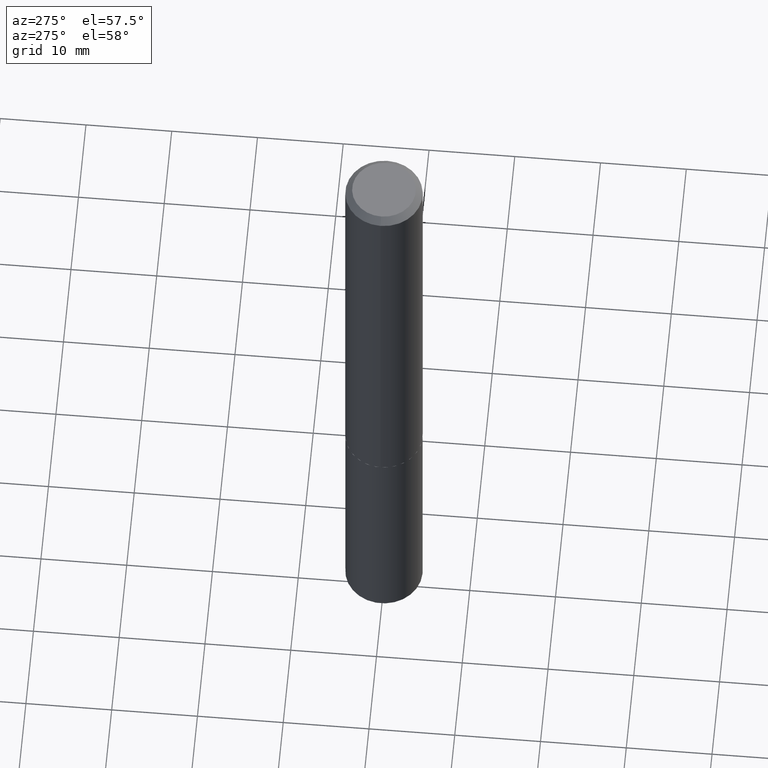
[diagram: clean part render]
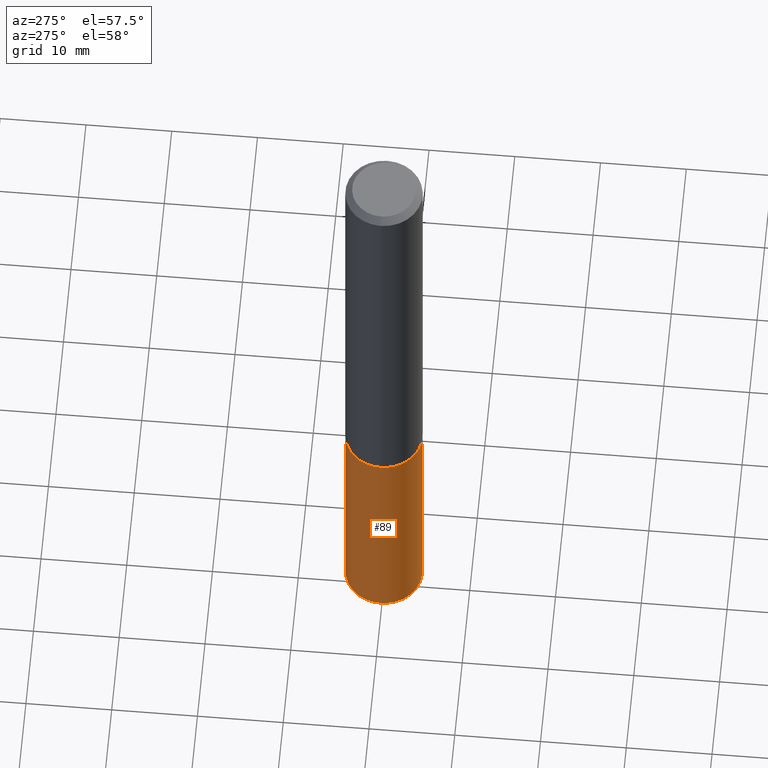
[diagram: same view with one face highlighted and labeled with its STEP entity id]
A machine part, auxiliary view. The second image highlights one B-rep face of the part: STEP entity #89.
In plain terms, the highlighted cylindrical surface (partial cylindrical patch) has radius 4.4996 mm, axis along (-0, 0, 1).
Its self-contained STEP definition (entity closure, byte-faithful):
#4 = CIRCLE ( 'NONE', #102, 0.1771500000000000019 ) ;
#17 = CARTESIAN_POINT ( 'NONE',  ( 5.102715210985907397E-29, -7.285324961630108994E-15, -2.086600000000000676 ) ) ;
#23 = CARTESIAN_POINT ( 'NONE',  ( -1.237031838352043113E-15, -0.1771500000000113817, -3.242622672999742051 ) ) ;
#48 = VERTEX_POINT ( 'NONE', #66 ) ;
#52 = AXIS2_PLACEMENT_3D ( 'NONE', #341, #133, #156 ) ;
#62 = DIRECTION ( 'NONE',  ( -2.445771156139322512E-29, 3.491048356500061707E-15, 1.000000000000000000 ) ) ;
#64 = DIRECTION ( 'NONE',  ( -2.445771156139322232E-29, 3.491048356500061313E-15, 1.000000000000000000 ) ) ;
#65 = DIRECTION ( 'NONE',  ( -2.445771156139322512E-29, 3.491048356500061707E-15, 1.000000000000000000 ) ) ;
#66 = CARTESIAN_POINT ( 'NONE',  ( 1.258726456399097168E-15, 0.1771499999999887054, -3.242622672999742939 ) ) ;
#71 = DIRECTION ( 'NONE',  ( -2.445771156139322232E-29, 3.491048356500061313E-15, 1.000000000000000000 ) ) ;
#89 = ADVANCED_FACE ( 'NONE', ( #125 ), #374, .T. ) ;
#90 = ORIENTED_EDGE ( 'NONE', *, *, #188, .F. ) ;
#99 = CARTESIAN_POINT ( 'NONE',  ( 5.102715210985907397E-29, -7.285324961630108994E-15, -2.086600000000000676 ) ) ;
#102 = AXIS2_PLACEMENT_3D ( 'NONE', #99, #71, #199 ) ;
#123 = VERTEX_POINT ( 'NONE', #129 ) ;
#125 = FACE_OUTER_BOUND ( 'NONE', #335, .T. ) ;
#128 = EDGE_CURVE ( 'NONE', #48, #215, #157, .T. ) ;
#129 = CARTESIAN_POINT ( 'NONE',  ( -1.237031838352071118E-15, -0.1771500000000073016, -2.086600000000000232 ) ) ;
#133 = DIRECTION ( 'NONE',  ( -2.445771156139322232E-29, 3.491048356500061313E-15, 1.000000000000000000 ) ) ;
#134 = EDGE_CURVE ( 'NONE', #48, #203, #223, .T. ) ;
#135 = LINE ( 'NONE', #347, #343 ) ;
#147 = AXIS2_PLACEMENT_3D ( 'NONE', #17, #64, #317 ) ;
#156 = DIRECTION ( 'NONE',  ( -6.982962677686265922E-15, -1.000000000000000000, 3.084220145260246224E-15 ) ) ;
#157 = CIRCLE ( 'NONE', #52, 0.1771500000000000019 ) ;
#188 = EDGE_CURVE ( 'NONE', #203, #123, #4, .T. ) ;
#199 = DIRECTION ( 'NONE',  ( -6.982962677686265922E-15, -1.000000000000000000, 3.084220145260246224E-15 ) ) ;
#203 = VERTEX_POINT ( 'NONE', #318 ) ;
#205 = ORIENTED_EDGE ( 'NONE', *, *, #362, .T. ) ;
#215 = VERTEX_POINT ( 'NONE', #23 ) ;
#217 = ORIENTED_EDGE ( 'NONE', *, *, #134, .F. ) ;
#223 = LINE ( 'NONE', #282, #269 ) ;
#269 = VECTOR ( 'NONE', #62, 39.37007874015748143 ) ;
#277 = ORIENTED_EDGE ( 'NONE', *, *, #128, .T. ) ;
#282 = CARTESIAN_POINT ( 'NONE',  ( 1.258726456399068374E-15, 0.1771499999999927299, -2.086600000000001121 ) ) ;
#317 = DIRECTION ( 'NONE',  ( -6.982962677686265922E-15, -1.000000000000000000, 3.084220145260246224E-15 ) ) ;
#318 = CARTESIAN_POINT ( 'NONE',  ( 1.258726456399096971E-15, 0.1771499999999927299, -2.086600000000001121 ) ) ;
#335 = EDGE_LOOP ( 'NONE', ( #217, #277, #205, #90 ) ) ;
#341 = CARTESIAN_POINT ( 'NONE',  ( 7.930082120451756435E-29, -1.132105601428266761E-14, -3.242622672999742495 ) ) ;
#343 = VECTOR ( 'NONE', #65, 39.37007874015748143 ) ;
#347 = CARTESIAN_POINT ( 'NONE',  ( -1.237031838352071118E-15, -0.1771500000000073016, -2.086600000000000232 ) ) ;
#362 = EDGE_CURVE ( 'NONE', #215, #123, #135, .T. ) ;
#374 = CYLINDRICAL_SURFACE ( 'NONE', #147, 0.1771500000000000019 ) ;